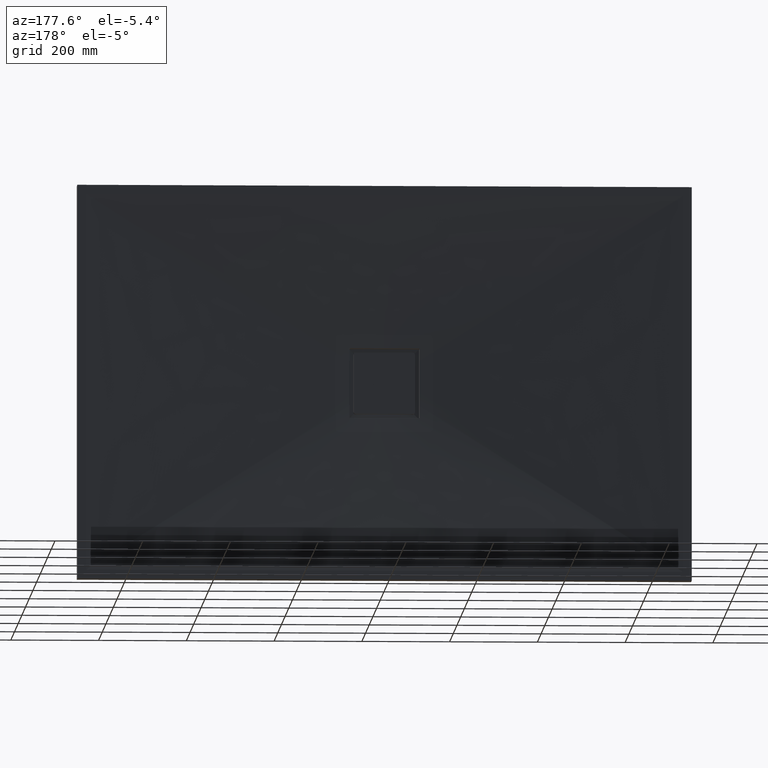
[diagram: clean part render]
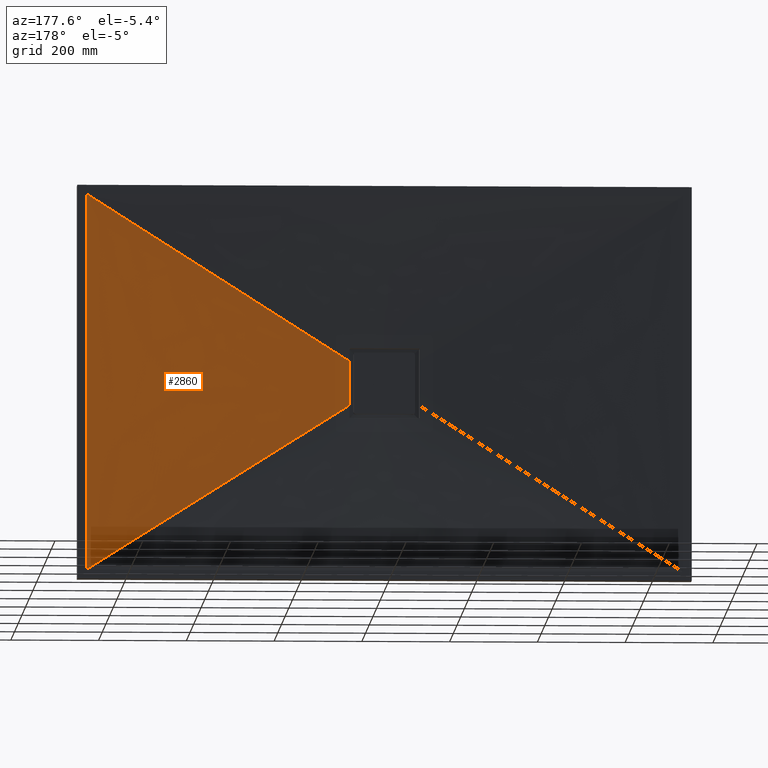
[diagram: same view with one face highlighted and labeled with its STEP entity id]
A machine part, auxiliary view. The second image highlights one B-rep face of the part: STEP entity #2860.
In plain terms, the highlighted face is a freeform B-spline surface patch.
Its self-contained STEP definition (entity closure, byte-faithful):
#15 = CARTESIAN_POINT ( 'NONE',  ( 679.9999999999997700, 35.00000000000002800, -35.83333333332983300 ) ) ;
#60 = CARTESIAN_POINT ( 'NONE',  ( 679.9999999999997700, 35.00000000000002800, -429.9999999999998900 ) ) ;
#74 = FACE_OUTER_BOUND ( 'NONE', #569, .T. ) ;
#95 = ORIENTED_EDGE ( 'NONE', *, *, #961, .T. ) ;
#140 = CARTESIAN_POINT ( 'NONE',  ( 75.63991250722423800, 20.00000000000001800, -26.32322505178419200 ) ) ;
#166 = LINE ( 'NONE', #2088, #1132 ) ;
#212 = CARTESIAN_POINT ( 'NONE',  ( 679.9999999999997700, 35.00000000000002800, -71.66666666666321800 ) ) ;
#223 = CARTESIAN_POINT ( 'NONE',  ( 79.71889910320229000, 20.00000000000001800, -7.723793770695541700 ) ) ;
#271 = CARTESIAN_POINT ( 'NONE',  ( 679.9999999999997700, 35.00000000000002800, -250.8333333333310100 ) ) ;
#299 = CARTESIAN_POINT ( 'NONE',  ( 679.9999999999997700, 35.00000000000002800, -358.3333333333321800 ) ) ;
#433 = CARTESIAN_POINT ( 'NONE',  ( 679.9999999999997700, 35.00000000000002800, 430.0000000000001700 ) ) ;
#487 = ORIENTED_EDGE ( 'NONE', *, *, #1405, .T. ) ;
#522 = CARTESIAN_POINT ( 'NONE',  ( 679.9999999999997700, 35.00000000000002800, -179.1666666666638200 ) ) ;
#534 = CARTESIAN_POINT ( 'NONE',  ( 69.51979440249900200, 20.00000000000001800, -39.74536018589414300 ) ) ;
#569 = EDGE_LOOP ( 'NONE', ( #1991, #95, #1278, #487 ) ) ;
#672 = VERTEX_POINT ( 'NONE', #998 ) ;
#961 = EDGE_CURVE ( 'NONE', #2026, #672, #3187, .T. ) ;
#998 = CARTESIAN_POINT ( 'NONE',  ( 80.00000000000007100, 20.30335170747321500, 50.58823529411782300 ) ) ;
#1132 = VECTOR ( 'NONE', #2108, 1000.000000000000100 ) ;
#1209 = CARTESIAN_POINT ( 'NONE',  ( 69.51979440249900200, 20.00000000000001800, 39.74536018589436300 ) ) ;
#1239 = VECTOR ( 'NONE', #1834, 1000.000000000000000 ) ;
#1248 = CARTESIAN_POINT ( 'NONE',  ( 79.71889910320229000, 20.00000000000001800, 7.723793770695763800 ) ) ;
#1278 = ORIENTED_EDGE ( 'NONE', *, *, #3286, .F. ) ;
#1335 = CARTESIAN_POINT ( 'NONE',  ( 80.00000000000007100, 20.30335170747321500, -50.58823529411748900 ) ) ;
#1374 = CARTESIAN_POINT ( 'NONE',  ( 71.25941182897754800, 20.00000000000001800, -36.54719234612669300 ) ) ;
#1383 = CARTESIAN_POINT ( 'NONE',  ( 80.00000000000007100, 20.30335170747321500, -50.58823529411748900 ) ) ;
#1405 = EDGE_CURVE ( 'NONE', #3283, #2658, #2220, .T. ) ;
#1468 = VECTOR ( 'NONE', #3219, 1000.000000000000100 ) ;
#1475 = CARTESIAN_POINT ( 'NONE',  ( 74.31964641322430500, 20.00000000000001800, 29.83607212100969300 ) ) ;
#1607 = CARTESIAN_POINT ( 'NONE',  ( 74.31964641322430500, 20.00000000000001800, -29.83607212100947200 ) ) ;
#1718 = CARTESIAN_POINT ( 'NONE',  ( 77.78619369133643600, 20.00000000000001800, -19.06873389193086900 ) ) ;
#1803 = LINE ( 'NONE', #3269, #1468 ) ;
#1834 = DIRECTION ( 'NONE',  ( 0.0000000000000000000, 0.0000000000000000000, -1.000000000000000000 ) ) ;
#1901 = CARTESIAN_POINT ( 'NONE',  ( 679.9999999999997700, 35.00000000000002800, 430.0000000000001700 ) ) ;
#1932 = CARTESIAN_POINT ( 'NONE',  ( 679.9999999999997700, 35.00000000000002800, -286.6666666666646400 ) ) ;
#1991 = ORIENTED_EDGE ( 'NONE', *, *, #2991, .T. ) ;
#2026 = VERTEX_POINT ( 'NONE', #1383 ) ;
#2088 = CARTESIAN_POINT ( 'NONE',  ( 373.8077369458299000, 27.49999999999996800, -236.3784218922158100 ) ) ;
#2108 = DIRECTION ( 'NONE',  ( -0.8450123593337416400, -0.02069808241327720700, 0.5343460507551606200 ) ) ;
#2129 = CARTESIAN_POINT ( 'NONE',  ( 679.9999999999997700, 35.00000000000002800, -143.3333333333302200 ) ) ;
#2220 = LINE ( 'NONE', #1901, #1239 ) ;
#2250 = CARTESIAN_POINT ( 'NONE',  ( 67.61547389166011600, 20.00000000000001800, 42.75684378443189400 ) ) ;
#2310 = CARTESIAN_POINT ( 'NONE',  ( 679.9999999999997700, 35.00000000000002800, 430.0000000000001700 ) ) ;
#2324 = CARTESIAN_POINT ( 'NONE',  ( 71.25941182897754800, 20.00000000000001800, 36.54719234612691300 ) ) ;
#2335 = CARTESIAN_POINT ( 'NONE',  ( 679.9999999999997700, 35.00000000000002800, 358.3333333333345100 ) ) ;
#2370 = CARTESIAN_POINT ( 'NONE',  ( 679.9999999999997700, 35.00000000000002800, 394.1666666666672000 ) ) ;
#2401 = CARTESIAN_POINT ( 'NONE',  ( 78.61190927029682000, 20.00000000000001800, 15.32734762825271900 ) ) ;
#2500 = CARTESIAN_POINT ( 'NONE',  ( 679.9999999999997700, 35.00000000000002800, 250.8333333333356700 ) ) ;
#2602 = CARTESIAN_POINT ( 'NONE',  ( 679.9999999999997700, 35.00000000000002800, 286.6666666666686200 ) ) ;
#2648 = CARTESIAN_POINT ( 'NONE',  ( 75.63991250722423800, 20.00000000000001800, 26.32322505178441600 ) ) ;
#2658 = VERTEX_POINT ( 'NONE', #60 ) ;
#2685 = CARTESIAN_POINT ( 'NONE',  ( 679.9999999999997700, 35.00000000000002800, -429.9999999999998900 ) ) ;
#2815 = B_SPLINE_SURFACE_WITH_KNOTS ( 'NONE', 3, 1, ( 
 ( #2685, #3038 ),
 ( #2831, #534 ),
 ( #299, #1374 ),
 ( #1932, #1607 ),
 ( #271, #140 ),
 ( #522, #1718 ),
 ( #2129, #3142 ),
 ( #212, #223 ),
 ( #15, #3075 ),
 ( #2941, #2901 ),
 ( #2931, #1248 ),
 ( #2888, #2401 ),
 ( #2868, #2844 ),
 ( #2500, #2648 ),
 ( #2602, #1475 ),
 ( #2335, #2324 ),
 ( #2370, #1209 ),
 ( #2310, #2250 ) ),
 .UNSPECIFIED., .F., .F., .F.,
 ( 4, 2, 2, 2, 2, 2, 2, 2, 4 ),
 ( 2, 2 ),
 ( 0.0000000000000000000, 0.1250000000000000000, 0.2500000000000000000, 0.3750000000000000000, 0.5000000000000000000, 0.6250000000000000000, 0.7500000000000000000, 0.8750000000000000000, 1.000000000000000000 ),
 ( 0.0000000000000000000, 1.000000000000000000 ),
 .UNSPECIFIED. ) ;
#2831 = CARTESIAN_POINT ( 'NONE',  ( 679.9999999999997700, 35.00000000000002800, -394.1666666666660000 ) ) ;
#2844 = CARTESIAN_POINT ( 'NONE',  ( 77.78619369133643600, 20.00000000000001800, 19.06873389193108900 ) ) ;
#2860 = ADVANCED_FACE ( 'NONE', ( #74 ), #2815, .F. ) ;
#2868 = CARTESIAN_POINT ( 'NONE',  ( 679.9999999999997700, 35.00000000000002800, 179.1666666666695800 ) ) ;
#2888 = CARTESIAN_POINT ( 'NONE',  ( 679.9999999999997700, 35.00000000000002800, 143.3333333333364100 ) ) ;
#2901 = CARTESIAN_POINT ( 'NONE',  ( 80.00000000000007100, 20.00000000000001800, 3.862001966524975000 ) ) ;
#2931 = CARTESIAN_POINT ( 'NONE',  ( 679.9999999999997700, 35.00000000000002800, 71.66666666667009600 ) ) ;
#2941 = CARTESIAN_POINT ( 'NONE',  ( 679.9999999999997700, 35.00000000000002800, 35.83333333333682400 ) ) ;
#2991 = EDGE_CURVE ( 'NONE', #2658, #2026, #166, .T. ) ;
#3038 = CARTESIAN_POINT ( 'NONE',  ( 67.61547389166011600, 20.00000000000001800, -42.75684378443167300 ) ) ;
#3057 = CARTESIAN_POINT ( 'NONE',  ( 80.00000000000007100, 20.14462400022224400, -33.72592213989954500 ) ) ;
#3075 = CARTESIAN_POINT ( 'NONE',  ( 80.00000000000007100, 20.00000000000001800, -3.862001966524752900 ) ) ;
#3132 = CARTESIAN_POINT ( 'NONE',  ( 79.99999999936601100, 20.00000137398956200, -16.86352426756460700 ) ) ;
#3137 = CARTESIAN_POINT ( 'NONE',  ( 79.99999999936598300, 19.99999862601047300, 16.86300548435536900 ) ) ;
#3142 = CARTESIAN_POINT ( 'NONE',  ( 78.61190927029682000, 20.00000000000001800, -15.32734762825249700 ) ) ;
#3187 = B_SPLINE_CURVE_WITH_KNOTS ( 'NONE', 3,
 ( #1335, #3057, #3132, #3137, #3188, #3203 ),
 .UNSPECIFIED., .F., .F.,
 ( 4, 2, 4 ),
 ( 0.0000000000000000000, 0.05058888542132988100, 0.1011777708426597600 ),
 .UNSPECIFIED. ) ;
#3188 = CARTESIAN_POINT ( 'NONE',  ( 80.00000000000007100, 20.14462250185346500, 33.72576296188301400 ) ) ;
#3203 = CARTESIAN_POINT ( 'NONE',  ( 80.00000000000007100, 20.30335170747321500, 50.58823529411782300 ) ) ;
#3219 = DIRECTION ( 'NONE',  ( -0.8450123593337416400, -0.02069808241327720700, -0.5343460507551605100 ) ) ;
#3269 = CARTESIAN_POINT ( 'NONE',  ( 373.8077369458299000, 27.49999999999996800, 236.3784218922160400 ) ) ;
#3283 = VERTEX_POINT ( 'NONE', #433 ) ;
#3286 = EDGE_CURVE ( 'NONE', #3283, #672, #1803, .T. ) ;